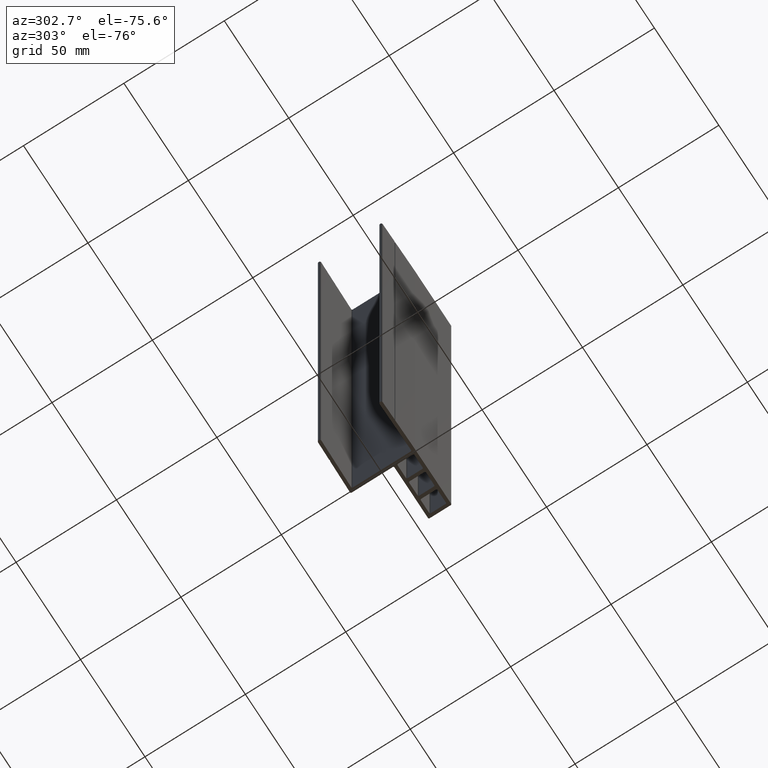
[diagram: clean part render]
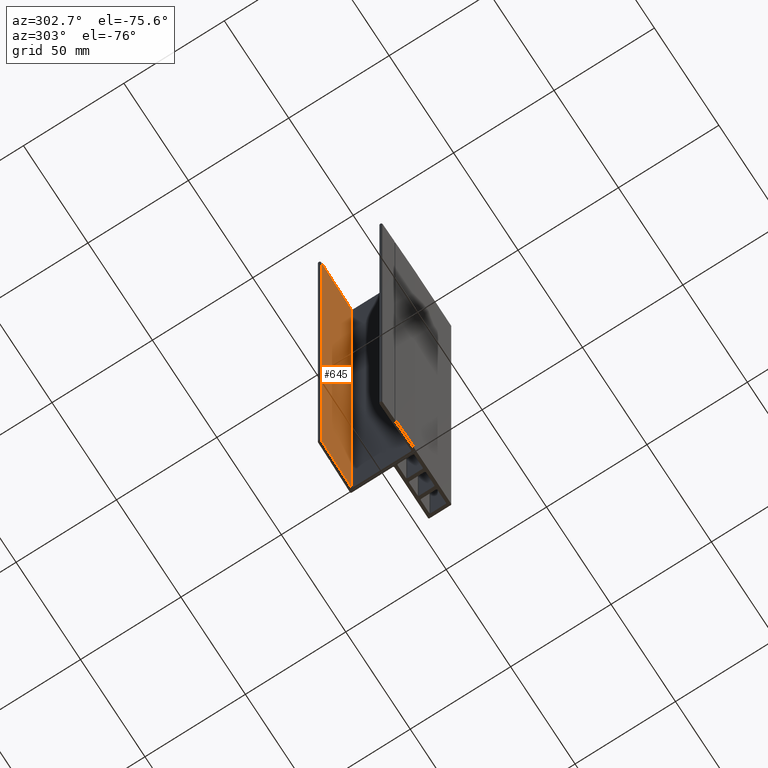
[diagram: same view with one face highlighted and labeled with its STEP entity id]
A machine part, auxiliary view. The second image highlights one B-rep face of the part: STEP entity #645.
In plain terms, the highlighted planar face has unit normal (-0.016, 0.9999, 0).
Its self-contained STEP definition (entity closure, byte-faithful):
#13 = DIRECTION ( 'NONE',  ( -0.0000000000000000000, -0.0000000000000000000, -1.000000000000000000 ) ) ;
#37 = LINE ( 'NONE', #1242, #842 ) ;
#38 = LINE ( 'NONE', #1644, #444 ) ;
#306 = EDGE_CURVE ( 'NONE', #507, #926, #1446, .T. ) ;
#322 = FACE_OUTER_BOUND ( 'NONE', #1423, .T. ) ;
#353 = DIRECTION ( 'NONE',  ( -0.9998720245707583000, -0.01599795239313215800, 0.0000000000000000000 ) ) ;
#356 = DIRECTION ( 'NONE',  ( -0.01599795239313215800, 0.9998720245707583000, 0.0000000000000000000 ) ) ;
#359 = CARTESIAN_POINT ( 'NONE',  ( -0.5079989761965714200, 14.89187201638085500, 150.0000000000000000 ) ) ;
#381 = PLANE ( 'NONE',  #592 ) ;
#385 = ORIENTED_EDGE ( 'NONE', *, *, #306, .F. ) ;
#444 = VECTOR ( 'NONE', #1649, 1000.000000000000100 ) ;
#454 = VECTOR ( 'NONE', #1318, 1000.000000000000000 ) ;
#464 = VERTEX_POINT ( 'NONE', #1124 ) ;
#507 = VERTEX_POINT ( 'NONE', #1016 ) ;
#592 = AXIS2_PLACEMENT_3D ( 'NONE', #359, #356, #353 ) ;
#626 = LINE ( 'NONE', #1341, #454 ) ;
#645 = ADVANCED_FACE ( 'NONE', ( #322 ), #381, .F. ) ;
#842 = VECTOR ( 'NONE', #1303, 1000.000000000000100 ) ;
#926 = VERTEX_POINT ( 'NONE', #1848 ) ;
#1016 = CARTESIAN_POINT ( 'NONE',  ( -0.5079989761965714200, 14.89187201638085500, 150.0000000000000000 ) ) ;
#1071 = EDGE_CURVE ( 'NONE', #464, #507, #38, .T. ) ;
#1096 = ORIENTED_EDGE ( 'NONE', *, *, #1365, .T. ) ;
#1124 = CARTESIAN_POINT ( 'NONE',  ( -24.20010238034338800, 14.51279836191450600, 150.0000000000000000 ) ) ;
#1158 = VERTEX_POINT ( 'NONE', #1556 ) ;
#1242 = CARTESIAN_POINT ( 'NONE',  ( -0.5079989761965714200, 14.89187201638085500, -150.0000000000000000 ) ) ;
#1303 = DIRECTION ( 'NONE',  ( 0.9998720245707583000, 0.01599795239313215800, -0.0000000000000000000 ) ) ;
#1304 = EDGE_CURVE ( 'NONE', #464, #1158, #626, .T. ) ;
#1318 = DIRECTION ( 'NONE',  ( -0.0000000000000000000, -0.0000000000000000000, -1.000000000000000000 ) ) ;
#1341 = CARTESIAN_POINT ( 'NONE',  ( -24.20010238034338800, 14.51279836191450600, 150.0000000000000000 ) ) ;
#1365 = EDGE_CURVE ( 'NONE', #1158, #926, #37, .T. ) ;
#1423 = EDGE_LOOP ( 'NONE', ( #1096, #385, #1469, #1775 ) ) ;
#1446 = LINE ( 'NONE', #1895, #1620 ) ;
#1469 = ORIENTED_EDGE ( 'NONE', *, *, #1071, .F. ) ;
#1556 = CARTESIAN_POINT ( 'NONE',  ( -24.20010238034338800, 14.51279836191450600, -150.0000000000000000 ) ) ;
#1620 = VECTOR ( 'NONE', #13, 1000.000000000000000 ) ;
#1644 = CARTESIAN_POINT ( 'NONE',  ( -0.5079989761965714200, 14.89187201638085500, 150.0000000000000000 ) ) ;
#1649 = DIRECTION ( 'NONE',  ( 0.9998720245707583000, 0.01599795239313215800, -0.0000000000000000000 ) ) ;
#1775 = ORIENTED_EDGE ( 'NONE', *, *, #1304, .T. ) ;
#1848 = CARTESIAN_POINT ( 'NONE',  ( -0.5079989761965714200, 14.89187201638085500, -150.0000000000000000 ) ) ;
#1895 = CARTESIAN_POINT ( 'NONE',  ( -0.5079989761965714200, 14.89187201638085500, 150.0000000000000000 ) ) ;